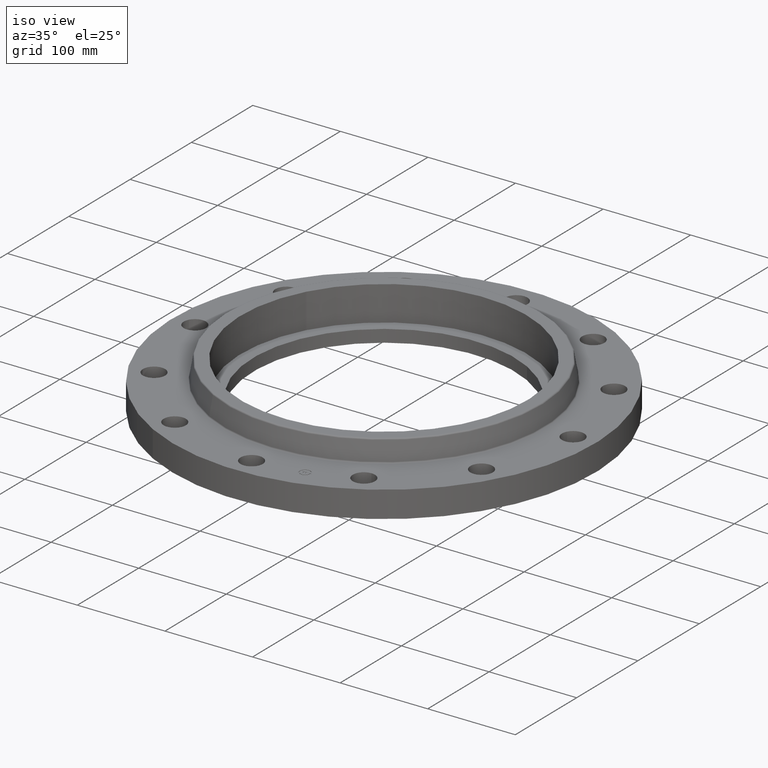
[diagram: clean part render]
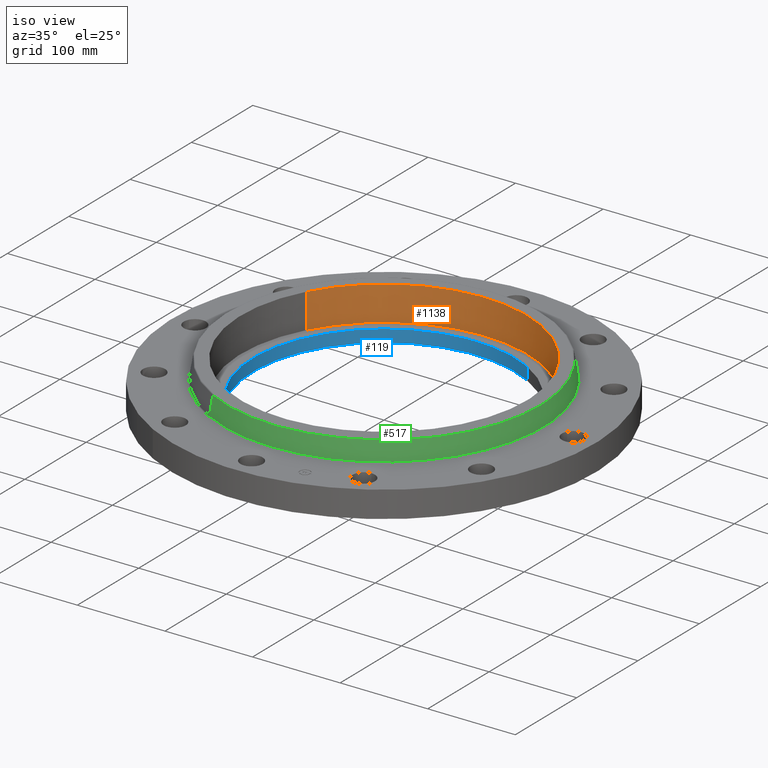
[diagram: same view with three faces highlighted in distinct colors, each labeled with its STEP entity id]
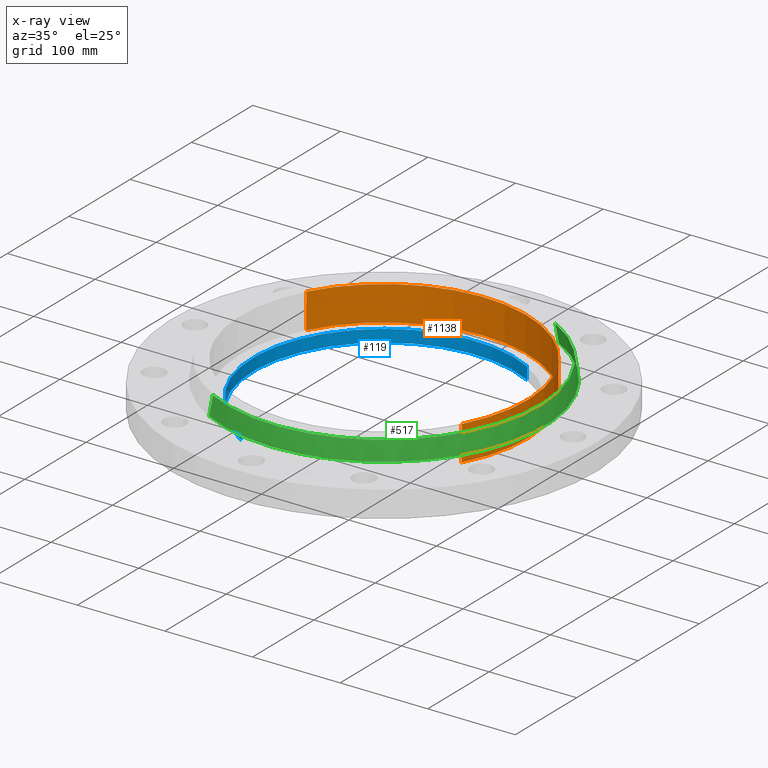
[diagram: x-ray of the same camera — body ghosted, the three highlighted faces saturated]
A machine part, iso view with three faces highlighted in distinct colors.
The next image is the same camera in x-ray (body ghosted, the three faces saturated) — at least one of them is partly hidden behind the body in this view.
Their STEP definitions:

[orange] entity #1138 — the highlighted cylindrical surface (partial cylindrical patch) has radius 163.576 mm, axis along (0, 0, -1).
#42=AXIS2_PLACEMENT_3D('Circle Axis2P3D',#40,#41,$) ;
#584=AXIS2_PLACEMENT_3D('Circle Axis2P3D',#582,#583,$) ;
#1120=AXIS2_PLACEMENT_3D('Cylinder Axis2P3D',#1117,#1118,#1119) ;
#40=CARTESIAN_POINT('Axis2P3D Location',(0.,-6.99353086378E-017,0.560000000002)) ;
#44=CARTESIAN_POINT('Vertex',(-5.6516316986,3.08750046862,0.560000000002)) ;
#46=CARTESIAN_POINT('Vertex',(5.6516316986,-3.08750046862,0.560000000002)) ;
#582=CARTESIAN_POINT('Axis2P3D Location',(-5.59482469102E-016,1.1189649382E-015,2.12000000001)) ;
#586=CARTESIAN_POINT('Vertex',(-5.6516316986,3.08750046862,2.12000000001)) ;
#588=CARTESIAN_POINT('Vertex',(5.6516316986,-3.08750046862,2.12000000001)) ;
#1117=CARTESIAN_POINT('Axis2P3D Location',(0.,-6.99353086378E-017,2.11606299213)) ;
#1122=CARTESIAN_POINT('Line Origine',(-5.6516316986,3.08750046862,1.34000000001)) ;
#1127=CARTESIAN_POINT('Line Origine',(5.6516316986,-3.08750046862,1.34000000001)) ;
#41=DIRECTION('Axis2P3D Direction',(0.,0.,-0.0393700787402)) ;
#583=DIRECTION('Axis2P3D Direction',(0.,0.,-0.0393700787402)) ;
#1118=DIRECTION('Axis2P3D Direction',(0.,0.,-0.0393700787402)) ;
#1119=DIRECTION('Axis2P3D XDirection',(0.0345504945626,-0.0188750212049,0.)) ;
#1123=DIRECTION('Vector Direction',(0.,0.,-0.0393700787402)) ;
#1128=DIRECTION('Vector Direction',(0.,0.,-0.0393700787402)) ;
#1124=VECTOR('Line Direction',#1123,0.0393700787402) ;
#1129=VECTOR('Line Direction',#1128,0.0393700787402) ;
#1133=ORIENTED_EDGE('',*,*,#590,.F.) ;
#1134=ORIENTED_EDGE('',*,*,#1126,.F.) ;
#1135=ORIENTED_EDGE('',*,*,#48,.T.) ;
#1136=ORIENTED_EDGE('',*,*,#1131,.T.) ;
#1138=ADVANCED_FACE('PartBody',(#1137),#1121,.F.) ;
#43=CIRCLE('generated circle',#42,6.44000000003) ;
#585=CIRCLE('generated circle',#584,6.44000000003) ;
#1121=CYLINDRICAL_SURFACE('generated cylinder',#1120,6.44000000003) ;
#48=EDGE_CURVE('',#45,#47,#43,.T.) ;
#590=EDGE_CURVE('',#587,#589,#585,.T.) ;
#1126=EDGE_CURVE('',#45,#587,#1125,.F.) ;
#1131=EDGE_CURVE('',#47,#589,#1130,.F.) ;
#1132=EDGE_LOOP('',(#1133,#1134,#1135,#1136)) ;
#1137=FACE_OUTER_BOUND('',#1132,.T.) ;
#1125=LINE('Line',#1122,#1124) ;
#1130=LINE('Line',#1127,#1129) ;
#45=VERTEX_POINT('',#44) ;
#47=VERTEX_POINT('',#46) ;
#587=VERTEX_POINT('',#586) ;
#589=VERTEX_POINT('',#588) ;

[blue] entity #119 — the highlighted cylindrical surface (partial cylindrical patch) has radius 149.225 mm, axis along (0, 0, -1).
#60=AXIS2_PLACEMENT_3D('Circle Axis2P3D',#58,#59,$) ;
#80=AXIS2_PLACEMENT_3D('Cylinder Axis2P3D',#77,#78,#79) ;
#110=AXIS2_PLACEMENT_3D('Circle Axis2P3D',#108,#109,$) ;
#58=CARTESIAN_POINT('Axis2P3D Location',(1.67844740731E-015,-6.99353086378E-017,0.560000000002)) ;
#62=CARTESIAN_POINT('Vertex',(-2.81662503931,-5.15579755113,0.560000000002)) ;
#64=CARTESIAN_POINT('Vertex',(2.81662503931,5.15579755113,0.560000000002)) ;
#77=CARTESIAN_POINT('Axis2P3D Location',(0.,0.,1.06)) ;
#82=CARTESIAN_POINT('Line Origine',(2.81662503931,5.15579755113,0.280000000001)) ;
#86=CARTESIAN_POINT('Vertex',(2.81662503931,5.15579755113,-2.72747703687E-014)) ;
#93=CARTESIAN_POINT('Vertex',(-2.81662503931,-5.15579755113,-2.72747703687E-014)) ;
#96=CARTESIAN_POINT('Line Origine',(-2.81662503931,-5.15579755113,0.280000000001)) ;
#108=CARTESIAN_POINT('Axis2P3D Location',(0.,0.,-2.7414640986E-014)) ;
#59=DIRECTION('Axis2P3D Direction',(0.,0.,-0.0393700787402)) ;
#78=DIRECTION('Axis2P3D Direction',(0.,0.,-0.0393700787402)) ;
#79=DIRECTION('Axis2P3D XDirection',(-0.0188750212049,-0.0345504945626,0.)) ;
#83=DIRECTION('Vector Direction',(0.,0.,-0.0393700787402)) ;
#97=DIRECTION('Vector Direction',(0.,0.,-0.0393700787402)) ;
#109=DIRECTION('Axis2P3D Direction',(0.,0.,-0.0393700787402)) ;
#84=VECTOR('Line Direction',#83,0.0393700787402) ;
#98=VECTOR('Line Direction',#97,0.0393700787402) ;
#114=ORIENTED_EDGE('',*,*,#100,.T.) ;
#115=ORIENTED_EDGE('',*,*,#112,.T.) ;
#116=ORIENTED_EDGE('',*,*,#88,.F.) ;
#117=ORIENTED_EDGE('',*,*,#66,.F.) ;
#119=ADVANCED_FACE('PartBody',(#118),#81,.F.) ;
#61=CIRCLE('generated circle',#60,5.87500000002) ;
#111=CIRCLE('generated circle',#110,5.87500000002) ;
#81=CYLINDRICAL_SURFACE('generated cylinder',#80,5.87500000002) ;
#66=EDGE_CURVE('',#63,#65,#61,.T.) ;
#88=EDGE_CURVE('',#65,#87,#85,.T.) ;
#100=EDGE_CURVE('',#63,#94,#99,.T.) ;
#112=EDGE_CURVE('',#94,#87,#111,.T.) ;
#113=EDGE_LOOP('',(#114,#115,#116,#117)) ;
#118=FACE_OUTER_BOUND('',#113,.T.) ;
#85=LINE('Line',#82,#84) ;
#99=LINE('Line',#96,#98) ;
#63=VERTEX_POINT('',#62) ;
#65=VERTEX_POINT('',#64) ;
#87=VERTEX_POINT('',#86) ;
#94=VERTEX_POINT('',#93) ;

[green] entity #517 — the highlighted conical surface has half-angle 10 deg.
#453=AXIS2_PLACEMENT_3D('Circle Axis2P3D',#451,#452,$) ;
#490=AXIS2_PLACEMENT_3D('Cone Axis2P3D',#487,#488,#489) ;
#501=AXIS2_PLACEMENT_3D('Circle Axis2P3D',#499,#500,$) ;
#448=CARTESIAN_POINT('Vertex',(3.44287825089,6.30214636561,1.23958110934)) ;
#451=CARTESIAN_POINT('Axis2P3D Location',(0.,0.,1.23958110934)) ;
#455=CARTESIAN_POINT('Vertex',(-3.44287825089,-6.30214636561,1.23958110934)) ;
#487=CARTESIAN_POINT('Axis2P3D Location',(0.,0.,2.07041889067)) ;
#492=CARTESIAN_POINT('Line Origine',(3.40776054175,6.23786383021,1.65500000001)) ;
#496=CARTESIAN_POINT('Vertex',(3.37264283261,6.17358129481,2.07041889067)) ;
#499=CARTESIAN_POINT('Axis2P3D Location',(0.,0.,2.07041889067)) ;
#503=CARTESIAN_POINT('Vertex',(-3.37264283261,-6.17358129481,2.07041889067)) ;
#506=CARTESIAN_POINT('Line Origine',(-3.40776054175,-6.23786383021,1.65500000001)) ;
#452=DIRECTION('Axis2P3D Direction',(0.,0.,-0.0393700787402)) ;
#488=DIRECTION('Axis2P3D Direction',(0.,0.,-0.0393700787402)) ;
#489=DIRECTION('Axis2P3D XDirection',(-0.0188750212049,-0.0345504945626,0.)) ;
#493=DIRECTION('Vector Direction',(0.00327761303565,0.00599963041829,-0.03877195878)) ;
#500=DIRECTION('Axis2P3D Direction',(0.,0.,-0.0393700787402)) ;
#507=DIRECTION('Vector Direction',(-0.00327761303565,-0.00599963041829,-0.03877195878)) ;
#494=VECTOR('Line Direction',#493,0.0393700787402) ;
#508=VECTOR('Line Direction',#507,0.0393700787402) ;
#512=ORIENTED_EDGE('',*,*,#457,.F.) ;
#513=ORIENTED_EDGE('',*,*,#498,.T.) ;
#514=ORIENTED_EDGE('',*,*,#505,.T.) ;
#515=ORIENTED_EDGE('',*,*,#510,.F.) ;
#517=ADVANCED_FACE('PartBody',(#516),#491,.T.) ;
#454=CIRCLE('generated circle',#453,7.18125751272) ;
#502=CIRCLE('generated circle',#501,7.03475839528) ;
#491=CONICAL_SURFACE('Cone',#490,7.03475839528,0.174532925199) ;
#457=EDGE_CURVE('',#449,#456,#454,.T.) ;
#498=EDGE_CURVE('',#449,#497,#495,.F.) ;
#505=EDGE_CURVE('',#497,#504,#502,.T.) ;
#510=EDGE_CURVE('',#456,#504,#509,.F.) ;
#511=EDGE_LOOP('',(#512,#513,#514,#515)) ;
#516=FACE_OUTER_BOUND('',#511,.T.) ;
#495=LINE('Line',#492,#494) ;
#509=LINE('Line',#506,#508) ;
#449=VERTEX_POINT('',#448) ;
#456=VERTEX_POINT('',#455) ;
#497=VERTEX_POINT('',#496) ;
#504=VERTEX_POINT('',#503) ;